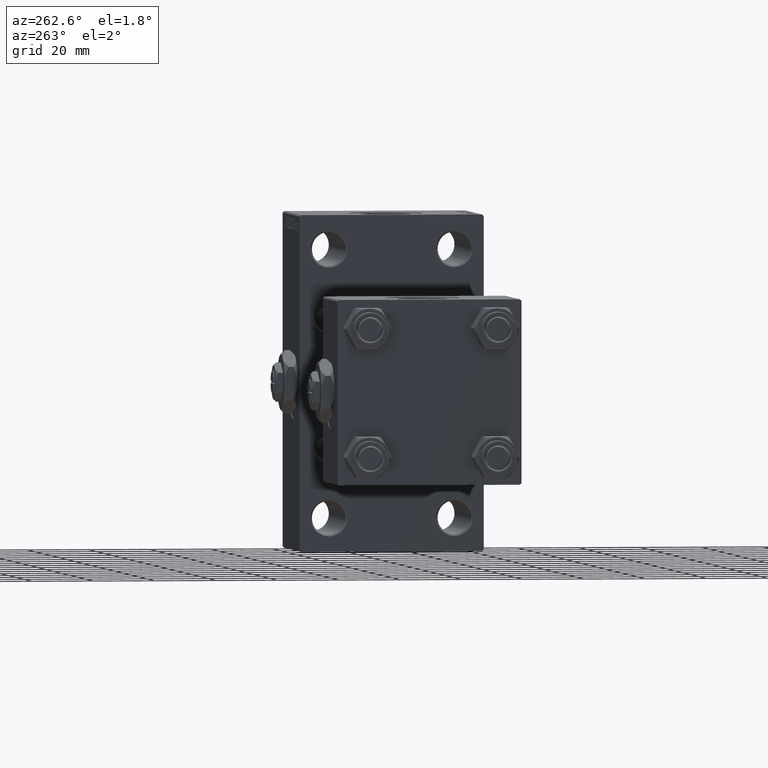
[diagram: clean part render]
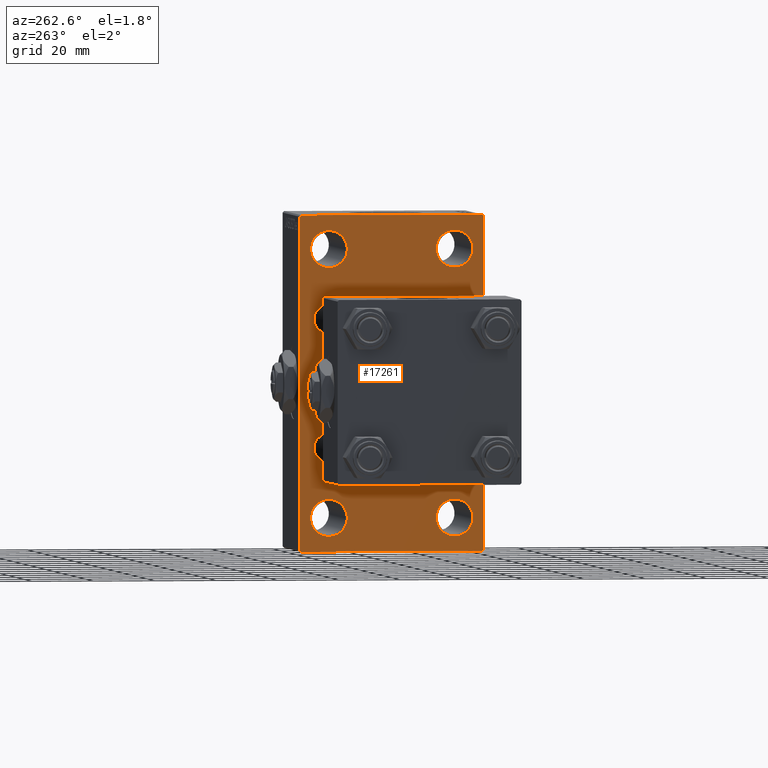
[diagram: same view with one face highlighted and labeled with its STEP entity id]
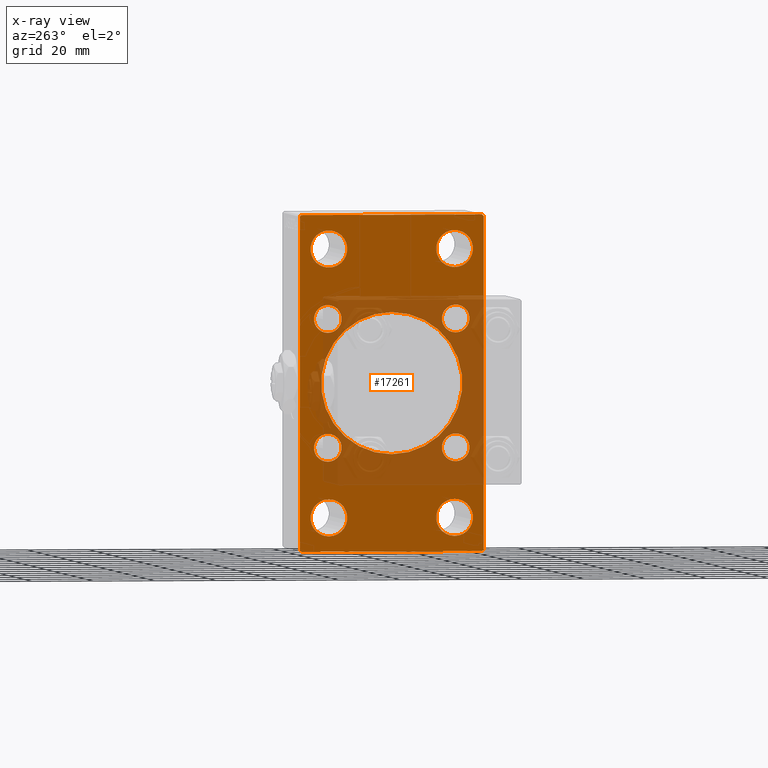
[diagram: x-ray of the same camera — body ghosted, the highlighted face saturated]
A machine part, auxiliary view. The second image highlights one B-rep face of the part: STEP entity #17261.
The next image is the same camera in x-ray: the body ghosted, the highlighted face saturated — about 34% of this face is hidden behind the body in this view.
In plain terms, the highlighted planar face has unit normal (-1, 0, 0).
Its self-contained STEP definition (entity closure, byte-faithful):
#459 = CARTESIAN_POINT ( 'NONE',  ( 95.00000000000000000, -30.00000000000000000, -53.99999999999998579 ) ) ;
#747 = CARTESIAN_POINT ( 'NONE',  ( 95.00000000000000000, 20.84999999999999787, -16.34999999999999432 ) ) ;
#1067 = DIRECTION ( 'NONE',  ( 0.000000000000000000, -1.000000000000000000, 1.156482317317871478E-16 ) ) ;
#1138 = VERTEX_POINT ( 'NONE', #33922 ) ;
#1454 = VECTOR ( 'NONE', #1067, 1000.000000000000000 ) ;
#2009 = VECTOR ( 'NONE', #40643, 1000.000000000000114 ) ;
#2307 = EDGE_CURVE ( 'NONE', #46576, #32072, #41559, .T. ) ;
#2372 = EDGE_CURVE ( 'NONE', #15923, #44837, #44819, .T. ) ;
#2415 = ORIENTED_EDGE ( 'NONE', *, *, #11664, .T. ) ;
#2613 = VECTOR ( 'NONE', #38455, 1000.000000000000114 ) ;
#3222 = EDGE_CURVE ( 'NONE', #34321, #8421, #35530, .T. ) ;
#3224 = EDGE_LOOP ( 'NONE', ( #41283, #45314 ) ) ;
#3390 = DIRECTION ( 'NONE',  ( 0.000000000000000000, 0.000000000000000000, -1.000000000000000000 ) ) ;
#3653 = DIRECTION ( 'NONE',  ( 1.000000000000000000, -0.000000000000000000, 0.000000000000000000 ) ) ;
#3727 = LINE ( 'NONE', #35439, #20182 ) ;
#4039 = LINE ( 'NONE', #19384, #18206 ) ;
#4574 = VERTEX_POINT ( 'NONE', #25096 ) ;
#4582 = ORIENTED_EDGE ( 'NONE', *, *, #32985, .T. ) ;
#4895 = CIRCLE ( 'NONE', #18527, 4.500000000000007105 ) ;
#5767 = CARTESIAN_POINT ( 'NONE',  ( 95.00000000000000000, -29.50000000000000355, -54.50000000000000000 ) ) ;
#6154 = FACE_BOUND ( 'NONE', #3224, .T. ) ;
#6473 = DIRECTION ( 'NONE',  ( 1.000000000000000000, -0.000000000000000000, 0.000000000000000000 ) ) ;
#6616 = CIRCLE ( 'NONE', #9824, 23.00000000000000000 ) ;
#6640 = FACE_BOUND ( 'NONE', #46174, .T. ) ;
#6745 = AXIS2_PLACEMENT_3D ( 'NONE', #18434, #18921, #15146 ) ;
#7003 = CARTESIAN_POINT ( 'NONE',  ( 95.00000000000000000, -30.00000000000000000, 53.99999999999997158 ) ) ;
#7100 = CIRCLE ( 'NONE', #26371, 5.999999999999894307 ) ;
#7102 = DIRECTION ( 'NONE',  ( 1.000000000000000000, -0.000000000000000000, 0.000000000000000000 ) ) ;
#7624 = ORIENTED_EDGE ( 'NONE', *, *, #21089, .T. ) ;
#7844 = DIRECTION ( 'NONE',  ( 0.000000000000000000, 0.000000000000000000, 1.000000000000000000 ) ) ;
#7972 = VERTEX_POINT ( 'NONE', #18406 ) ;
#8024 = CIRCLE ( 'NONE', #24932, 5.999999999999894307 ) ;
#8032 = CARTESIAN_POINT ( 'NONE',  ( 95.00000000000000000, 20.50000000000000000, 49.49999999999989342 ) ) ;
#8247 = EDGE_LOOP ( 'NONE', ( #27479, #4582 ) ) ;
#8265 = VERTEX_POINT ( 'NONE', #35912 ) ;
#8421 = VERTEX_POINT ( 'NONE', #27398 ) ;
#8431 = EDGE_CURVE ( 'NONE', #23360, #17825, #47442, .T. ) ;
#8524 = DIRECTION ( 'NONE',  ( 0.000000000000000000, 0.000000000000000000, 1.000000000000000000 ) ) ;
#8817 = ORIENTED_EDGE ( 'NONE', *, *, #10501, .T. ) ;
#8826 = CARTESIAN_POINT ( 'NONE',  ( 95.00000000000000000, -20.50000000000000000, -43.50000000000000000 ) ) ;
#8835 = DIRECTION ( 'NONE',  ( 0.000000000000000000, -1.000000000000000000, -1.156482317317871478E-16 ) ) ;
#8899 = DIRECTION ( 'NONE',  ( 0.000000000000000000, 0.7071067811865279218, -0.7071067811865671127 ) ) ;
#8930 = VERTEX_POINT ( 'NONE', #30308 ) ;
#9120 = AXIS2_PLACEMENT_3D ( 'NONE', #41913, #38402, #29619 ) ;
#9256 = CARTESIAN_POINT ( 'NONE',  ( 95.00000000000000000, 20.84999999999999787, 20.85000000000000142 ) ) ;
#9692 = FACE_BOUND ( 'NONE', #49519, .T. ) ;
#9824 = AXIS2_PLACEMENT_3D ( 'NONE', #28721, #48330, #21187 ) ;
#10041 = AXIS2_PLACEMENT_3D ( 'NONE', #36066, #46359, #27240 ) ;
#10098 = CIRCLE ( 'NONE', #13297, 4.500000000000007105 ) ;
#10435 = CARTESIAN_POINT ( 'NONE',  ( 95.00000000000000000, 20.84999999999999787, 25.35000000000000853 ) ) ;
#10501 = EDGE_CURVE ( 'NONE', #44837, #15923, #31409, .T. ) ;
#10602 = EDGE_CURVE ( 'NONE', #41868, #4574, #3727, .T. ) ;
#10890 = CARTESIAN_POINT ( 'NONE',  ( 95.00000000000000000, -20.50000000000000000, 43.50000000000000000 ) ) ;
#10893 = CARTESIAN_POINT ( 'NONE',  ( 95.00000000000000000, -20.84999999999999076, -20.85000000000000497 ) ) ;
#11207 = CARTESIAN_POINT ( 'NONE',  ( 95.00000000000000000, 20.50000000000000000, 43.50000000000000000 ) ) ;
#11422 = AXIS2_PLACEMENT_3D ( 'NONE', #24584, #39927, #20806 ) ;
#11664 = EDGE_CURVE ( 'NONE', #39346, #26410, #4895, .T. ) ;
#11692 = DIRECTION ( 'NONE',  ( 0.000000000000000000, 0.000000000000000000, 1.000000000000000000 ) ) ;
#12538 = EDGE_LOOP ( 'NONE', ( #13278, #35503 ) ) ;
#12605 = VERTEX_POINT ( 'NONE', #48983 ) ;
#13083 = LINE ( 'NONE', #39983, #30060 ) ;
#13278 = ORIENTED_EDGE ( 'NONE', *, *, #8431, .T. ) ;
#13297 = AXIS2_PLACEMENT_3D ( 'NONE', #22518, #30058, #11692 ) ;
#13481 = FACE_BOUND ( 'NONE', #28366, .T. ) ;
#14079 = CIRCLE ( 'NONE', #35770, 4.500000000000007105 ) ;
#15050 = VERTEX_POINT ( 'NONE', #10435 ) ;
#15146 = DIRECTION ( 'NONE',  ( 0.000000000000000000, 0.000000000000000000, 1.000000000000000000 ) ) ;
#15581 = VERTEX_POINT ( 'NONE', #459 ) ;
#15923 = VERTEX_POINT ( 'NONE', #29725 ) ;
#16057 = EDGE_CURVE ( 'NONE', #8930, #33587, #4039, .T. ) ;
#16157 = DIRECTION ( 'NONE',  ( 1.000000000000000000, -0.000000000000000000, 0.000000000000000000 ) ) ;
#16221 = CARTESIAN_POINT ( 'NONE',  ( 95.00000000000000000, -20.50000000000000000, -49.49999999999989342 ) ) ;
#16329 = DIRECTION ( 'NONE',  ( 1.000000000000000000, -0.000000000000000000, 0.000000000000000000 ) ) ;
#16807 = EDGE_CURVE ( 'NONE', #15050, #8265, #43953, .T. ) ;
#16919 = CARTESIAN_POINT ( 'NONE',  ( 95.00000000000000000, 29.99999999999999645, 54.49999999999999289 ) ) ;
#17091 = CARTESIAN_POINT ( 'NONE',  ( 95.00000000000000000, -20.50000000000000000, 49.49999999999989342 ) ) ;
#17175 = CIRCLE ( 'NONE', #9120, 4.500000000000007105 ) ;
#17261 = ADVANCED_FACE ( 'NONE', ( #48889, #21986, #6640, #40614, #13481, #6154, #17731, #33318, #9692, #25035 ), #33073, .T. ) ;
#17470 = AXIS2_PLACEMENT_3D ( 'NONE', #48404, #25765, #44632 ) ;
#17731 = FACE_BOUND ( 'NONE', #34397, .T. ) ;
#17825 = VERTEX_POINT ( 'NONE', #43454 ) ;
#17840 = DIRECTION ( 'NONE',  ( 0.000000000000000000, 0.000000000000000000, 1.000000000000000000 ) ) ;
#18191 = DIRECTION ( 'NONE',  ( 1.000000000000000000, -0.000000000000000000, 0.000000000000000000 ) ) ;
#18206 = VECTOR ( 'NONE', #8835, 1000.000000000000000 ) ;
#18323 = CARTESIAN_POINT ( 'NONE',  ( 95.00000000000000000, -20.84999999999999076, 25.35000000000001208 ) ) ;
#18406 = CARTESIAN_POINT ( 'NONE',  ( 95.00000000000000000, 20.50000000000000000, -49.49999999999989342 ) ) ;
#18434 = CARTESIAN_POINT ( 'NONE',  ( 95.00000000000000000, 20.84999999999999787, 20.85000000000000142 ) ) ;
#18527 = AXIS2_PLACEMENT_3D ( 'NONE', #27625, #16329, #8524 ) ;
#18921 = DIRECTION ( 'NONE',  ( 1.000000000000000000, -0.000000000000000000, 0.000000000000000000 ) ) ;
#19072 = DIRECTION ( 'NONE',  ( 0.000000000000000000, 0.000000000000000000, -1.000000000000000000 ) ) ;
#19235 = DIRECTION ( 'NONE',  ( 0.000000000000000000, 0.000000000000000000, 1.000000000000000000 ) ) ;
#19384 = CARTESIAN_POINT ( 'NONE',  ( 95.00000000000000000, 29.99999999999999645, -54.49999999999999289 ) ) ;
#19505 = DIRECTION ( 'NONE',  ( 0.000000000000000000, 0.000000000000000000, 1.000000000000000000 ) ) ;
#19892 = AXIS2_PLACEMENT_3D ( 'NONE', #44705, #6473, #37162 ) ;
#20182 = VECTOR ( 'NONE', #19072, 1000.000000000000000 ) ;
#20227 = EDGE_CURVE ( 'NONE', #17825, #23360, #7100, .T. ) ;
#20433 = ORIENTED_EDGE ( 'NONE', *, *, #2372, .T. ) ;
#20471 = LINE ( 'NONE', #43342, #30896 ) ;
#20806 = DIRECTION ( 'NONE',  ( 0.000000000000000000, 0.000000000000000000, 1.000000000000000000 ) ) ;
#21072 = DIRECTION ( 'NONE',  ( 0.000000000000000000, 0.000000000000000000, 1.000000000000000000 ) ) ;
#21089 = EDGE_CURVE ( 'NONE', #23192, #12605, #25633, .T. ) ;
#21150 = CIRCLE ( 'NONE', #41975, 5.999999999999894307 ) ;
#21187 = DIRECTION ( 'NONE',  ( 0.000000000000000000, 0.000000000000000000, -1.000000000000000000 ) ) ;
#21986 = FACE_BOUND ( 'NONE', #24572, .T. ) ;
#22518 = CARTESIAN_POINT ( 'NONE',  ( 95.00000000000000000, -20.84999999999999076, -20.85000000000000497 ) ) ;
#22796 = CARTESIAN_POINT ( 'NONE',  ( 95.00000000000000000, -20.84999999999999076, 16.34999999999999787 ) ) ;
#22869 = EDGE_CURVE ( 'NONE', #7972, #47274, #8024, .T. ) ;
#23192 = VERTEX_POINT ( 'NONE', #747 ) ;
#23360 = VERTEX_POINT ( 'NONE', #8032 ) ;
#23755 = CARTESIAN_POINT ( 'NONE',  ( 95.00000000000000000, -42.00000000000051159, -41.99999999999905498 ) ) ;
#24130 = LINE ( 'NONE', #30900, #2613 ) ;
#24175 = DIRECTION ( 'NONE',  ( 1.000000000000000000, -0.000000000000000000, 0.000000000000000000 ) ) ;
#24426 = DIRECTION ( 'NONE',  ( 0.000000000000000000, 0.000000000000000000, 1.000000000000000000 ) ) ;
#24442 = VERTEX_POINT ( 'NONE', #7003 ) ;
#24572 = EDGE_LOOP ( 'NONE', ( #20433, #8817 ) ) ;
#24584 = CARTESIAN_POINT ( 'NONE',  ( 95.00000000000000000, -20.84999999999999076, 20.85000000000000497 ) ) ;
#24932 = AXIS2_PLACEMENT_3D ( 'NONE', #46070, #16157, #7844 ) ;
#24977 = ORIENTED_EDGE ( 'NONE', *, *, #33596, .T. ) ;
#25035 = FACE_OUTER_BOUND ( 'NONE', #29285, .T. ) ;
#25096 = CARTESIAN_POINT ( 'NONE',  ( 95.00000000000000000, 29.99999999999999645, -53.99999999999999289 ) ) ;
#25202 = ORIENTED_EDGE ( 'NONE', *, *, #39574, .T. ) ;
#25633 = CIRCLE ( 'NONE', #32060, 4.500000000000007105 ) ;
#25765 = DIRECTION ( 'NONE',  ( -1.000000000000000000, 0.000000000000000000, -0.000000000000000000 ) ) ;
#26077 = CARTESIAN_POINT ( 'NONE',  ( 95.00000000000000000, -20.50000000000000000, -43.50000000000000000 ) ) ;
#26371 = AXIS2_PLACEMENT_3D ( 'NONE', #11207, #3653, #19235 ) ;
#26410 = VERTEX_POINT ( 'NONE', #22796 ) ;
#26724 = VERTEX_POINT ( 'NONE', #42841 ) ;
#27192 = DIRECTION ( 'NONE',  ( 0.000000000000000000, 0.000000000000000000, 1.000000000000000000 ) ) ;
#27240 = DIRECTION ( 'NONE',  ( 0.000000000000000000, 0.000000000000000000, 1.000000000000000000 ) ) ;
#27382 = AXIS2_PLACEMENT_3D ( 'NONE', #8826, #24175, #24426 ) ;
#27387 = ORIENTED_EDGE ( 'NONE', *, *, #32376, .T. ) ;
#27398 = CARTESIAN_POINT ( 'NONE',  ( 95.00000000000000000, -29.49999999999997513, 54.50000000000000000 ) ) ;
#27479 = ORIENTED_EDGE ( 'NONE', *, *, #2307, .T. ) ;
#27603 = DIRECTION ( 'NONE',  ( 0.000000000000000000, 0.000000000000000000, 1.000000000000000000 ) ) ;
#27625 = CARTESIAN_POINT ( 'NONE',  ( 95.00000000000000000, -20.84999999999999076, 20.85000000000000497 ) ) ;
#27741 = EDGE_LOOP ( 'NONE', ( #30215, #47360 ) ) ;
#27964 = AXIS2_PLACEMENT_3D ( 'NONE', #26077, #38378, #19505 ) ;
#28125 = VERTEX_POINT ( 'NONE', #34697 ) ;
#28197 = ORIENTED_EDGE ( 'NONE', *, *, #39157, .F. ) ;
#28366 = EDGE_LOOP ( 'NONE', ( #2415, #25202 ) ) ;
#28424 = ORIENTED_EDGE ( 'NONE', *, *, #36441, .T. ) ;
#28721 = CARTESIAN_POINT ( 'NONE',  ( 95.00000000000000000, -2.602085213965210642E-15, 0.000000000000000000 ) ) ;
#28828 = LINE ( 'NONE', #36393, #2009 ) ;
#29285 = EDGE_LOOP ( 'NONE', ( #31141, #31511, #28197, #28424, #36335, #35764, #31177, #27387 ) ) ;
#29619 = DIRECTION ( 'NONE',  ( 0.000000000000000000, 0.000000000000000000, 1.000000000000000000 ) ) ;
#29725 = CARTESIAN_POINT ( 'NONE',  ( 95.00000000000000000, -20.50000000000000000, -37.50000000000009948 ) ) ;
#30058 = DIRECTION ( 'NONE',  ( 1.000000000000000000, -0.000000000000000000, 0.000000000000000000 ) ) ;
#30060 = VECTOR ( 'NONE', #36706, 1000.000000000000000 ) ;
#30215 = ORIENTED_EDGE ( 'NONE', *, *, #37641, .T. ) ;
#30298 = EDGE_CURVE ( 'NONE', #1138, #28125, #39494, .T. ) ;
#30308 = CARTESIAN_POINT ( 'NONE',  ( 95.00000000000000000, 29.49999999999999645, -54.49999999999999289 ) ) ;
#30870 = CARTESIAN_POINT ( 'NONE',  ( 95.00000000000000000, 20.84999999999999787, -20.85000000000000142 ) ) ;
#30896 = VECTOR ( 'NONE', #8899, 1000.000000000000000 ) ;
#30900 = CARTESIAN_POINT ( 'NONE',  ( 95.00000000000000000, 41.99999999999998579, -41.99999999999998579 ) ) ;
#31141 = ORIENTED_EDGE ( 'NONE', *, *, #16057, .T. ) ;
#31177 = ORIENTED_EDGE ( 'NONE', *, *, #10602, .T. ) ;
#31409 = CIRCLE ( 'NONE', #27382, 5.999999999999894307 ) ;
#31511 = ORIENTED_EDGE ( 'NONE', *, *, #44803, .T. ) ;
#31803 = DIRECTION ( 'NONE',  ( 0.000000000000000000, -0.7071067811865352493, 0.7071067811865597852 ) ) ;
#32060 = AXIS2_PLACEMENT_3D ( 'NONE', #30870, #40132, #27603 ) ;
#32072 = VERTEX_POINT ( 'NONE', #42026 ) ;
#32376 = EDGE_CURVE ( 'NONE', #4574, #8930, #24130, .T. ) ;
#32639 = DIRECTION ( 'NONE',  ( 1.000000000000000000, -0.000000000000000000, 0.000000000000000000 ) ) ;
#32985 = EDGE_CURVE ( 'NONE', #32072, #46576, #21150, .T. ) ;
#33073 = PLANE ( 'NONE',  #17470 ) ;
#33318 = FACE_BOUND ( 'NONE', #27741, .T. ) ;
#33432 = CARTESIAN_POINT ( 'NONE',  ( 95.00000000000000000, 20.50000000000000000, 43.50000000000000000 ) ) ;
#33503 = AXIS2_PLACEMENT_3D ( 'NONE', #9256, #32639, #21072 ) ;
#33532 = DIRECTION ( 'NONE',  ( 0.000000000000000000, 0.000000000000000000, 1.000000000000000000 ) ) ;
#33587 = VERTEX_POINT ( 'NONE', #5767 ) ;
#33596 = EDGE_CURVE ( 'NONE', #12605, #23192, #17175, .T. ) ;
#33922 = CARTESIAN_POINT ( 'NONE',  ( 95.00000000000000000, -2.602085213965210642E-15, 23.00000000000000000 ) ) ;
#34321 = VERTEX_POINT ( 'NONE', #42954 ) ;
#34397 = EDGE_LOOP ( 'NONE', ( #7624, #24977 ) ) ;
#34697 = CARTESIAN_POINT ( 'NONE',  ( 95.00000000000000000, 2.146024240737012665E-16, -23.00000000000000000 ) ) ;
#35380 = AXIS2_PLACEMENT_3D ( 'NONE', #33432, #36476, #17840 ) ;
#35439 = CARTESIAN_POINT ( 'NONE',  ( 95.00000000000000000, 29.99999999999999645, 54.49999999999999289 ) ) ;
#35503 = ORIENTED_EDGE ( 'NONE', *, *, #20227, .T. ) ;
#35530 = LINE ( 'NONE', #16919, #1454 ) ;
#35764 = ORIENTED_EDGE ( 'NONE', *, *, #49315, .T. ) ;
#35770 = AXIS2_PLACEMENT_3D ( 'NONE', #10893, #18191, #33532 ) ;
#35912 = CARTESIAN_POINT ( 'NONE',  ( 95.00000000000000000, 20.84999999999999787, 16.34999999999999432 ) ) ;
#36066 = CARTESIAN_POINT ( 'NONE',  ( 95.00000000000000000, 20.50000000000000000, -43.50000000000000000 ) ) ;
#36335 = ORIENTED_EDGE ( 'NONE', *, *, #3222, .F. ) ;
#36386 = CARTESIAN_POINT ( 'NONE',  ( 95.00000000000000000, -20.84999999999999076, -25.35000000000001208 ) ) ;
#36393 = CARTESIAN_POINT ( 'NONE',  ( 95.00000000000000000, -42.00000000000008527, 41.99999999999979394 ) ) ;
#36441 = EDGE_CURVE ( 'NONE', #24442, #8421, #28828, .T. ) ;
#36476 = DIRECTION ( 'NONE',  ( 1.000000000000000000, -0.000000000000000000, 0.000000000000000000 ) ) ;
#36706 = DIRECTION ( 'NONE',  ( 0.000000000000000000, 0.000000000000000000, -1.000000000000000000 ) ) ;
#37085 = AXIS2_PLACEMENT_3D ( 'NONE', #37608, #41847, #3390 ) ;
#37162 = DIRECTION ( 'NONE',  ( 0.000000000000000000, 0.000000000000000000, 1.000000000000000000 ) ) ;
#37608 = CARTESIAN_POINT ( 'NONE',  ( 95.00000000000000000, -2.602085213965210642E-15, 0.000000000000000000 ) ) ;
#37641 = EDGE_CURVE ( 'NONE', #26724, #46055, #14079, .T. ) ;
#37924 = ORIENTED_EDGE ( 'NONE', *, *, #22869, .T. ) ;
#37985 = VECTOR ( 'NONE', #31803, 1000.000000000000000 ) ;
#38225 = EDGE_CURVE ( 'NONE', #46055, #26724, #10098, .T. ) ;
#38378 = DIRECTION ( 'NONE',  ( 1.000000000000000000, -0.000000000000000000, 0.000000000000000000 ) ) ;
#38402 = DIRECTION ( 'NONE',  ( 1.000000000000000000, -0.000000000000000000, 0.000000000000000000 ) ) ;
#38455 = DIRECTION ( 'NONE',  ( -0.000000000000000000, -0.7071067811865474617, -0.7071067811865474617 ) ) ;
#39157 = EDGE_CURVE ( 'NONE', #24442, #15581, #13083, .T. ) ;
#39346 = VERTEX_POINT ( 'NONE', #18323 ) ;
#39494 = CIRCLE ( 'NONE', #37085, 23.00000000000000000 ) ;
#39574 = EDGE_CURVE ( 'NONE', #26410, #39346, #44367, .T. ) ;
#39863 = EDGE_CURVE ( 'NONE', #28125, #1138, #6616, .T. ) ;
#39927 = DIRECTION ( 'NONE',  ( 1.000000000000000000, -0.000000000000000000, 0.000000000000000000 ) ) ;
#39983 = CARTESIAN_POINT ( 'NONE',  ( 95.00000000000000000, -30.00000000000000000, 54.50000000000000000 ) ) ;
#40132 = DIRECTION ( 'NONE',  ( 1.000000000000000000, -0.000000000000000000, 0.000000000000000000 ) ) ;
#40292 = ORIENTED_EDGE ( 'NONE', *, *, #30298, .T. ) ;
#40338 = ORIENTED_EDGE ( 'NONE', *, *, #39863, .T. ) ;
#40614 = FACE_BOUND ( 'NONE', #12538, .T. ) ;
#40643 = DIRECTION ( 'NONE',  ( -0.000000000000000000, 0.7071067811865451302, 0.7071067811865500152 ) ) ;
#41168 = CARTESIAN_POINT ( 'NONE',  ( 95.00000000000000000, 29.99999999999999645, 53.99999999999999289 ) ) ;
#41283 = ORIENTED_EDGE ( 'NONE', *, *, #16807, .T. ) ;
#41559 = CIRCLE ( 'NONE', #19892, 5.999999999999894307 ) ;
#41847 = DIRECTION ( 'NONE',  ( 1.000000000000000000, 0.000000000000000000, 0.000000000000000000 ) ) ;
#41868 = VERTEX_POINT ( 'NONE', #41168 ) ;
#41913 = CARTESIAN_POINT ( 'NONE',  ( 95.00000000000000000, 20.84999999999999787, -20.85000000000000142 ) ) ;
#41975 = AXIS2_PLACEMENT_3D ( 'NONE', #10890, #7102, #27192 ) ;
#42026 = CARTESIAN_POINT ( 'NONE',  ( 95.00000000000000000, -20.50000000000000000, 37.50000000000009948 ) ) ;
#42841 = CARTESIAN_POINT ( 'NONE',  ( 95.00000000000000000, -20.84999999999999076, -16.34999999999999787 ) ) ;
#42954 = CARTESIAN_POINT ( 'NONE',  ( 95.00000000000000000, 29.50000000000002132, 54.49999999999999289 ) ) ;
#43342 = CARTESIAN_POINT ( 'NONE',  ( 95.00000000000000000, 42.00000000000082423, 41.99999999999849365 ) ) ;
#43454 = CARTESIAN_POINT ( 'NONE',  ( 95.00000000000000000, 20.50000000000000000, 37.50000000000009948 ) ) ;
#43622 = LINE ( 'NONE', #23755, #37985 ) ;
#43953 = CIRCLE ( 'NONE', #33503, 4.500000000000007105 ) ;
#44367 = CIRCLE ( 'NONE', #11422, 4.500000000000007105 ) ;
#44566 = CIRCLE ( 'NONE', #10041, 5.999999999999894307 ) ;
#44632 = DIRECTION ( 'NONE',  ( -0.000000000000000000, 0.000000000000000000, 1.000000000000000000 ) ) ;
#44705 = CARTESIAN_POINT ( 'NONE',  ( 95.00000000000000000, -20.50000000000000000, 43.50000000000000000 ) ) ;
#44803 = EDGE_CURVE ( 'NONE', #33587, #15581, #43622, .T. ) ;
#44819 = CIRCLE ( 'NONE', #27964, 5.999999999999894307 ) ;
#44837 = VERTEX_POINT ( 'NONE', #16221 ) ;
#45043 = ORIENTED_EDGE ( 'NONE', *, *, #49335, .T. ) ;
#45269 = CIRCLE ( 'NONE', #6745, 4.500000000000007105 ) ;
#45314 = ORIENTED_EDGE ( 'NONE', *, *, #47333, .T. ) ;
#45333 = CARTESIAN_POINT ( 'NONE',  ( 95.00000000000000000, 20.50000000000000000, -37.50000000000009948 ) ) ;
#46055 = VERTEX_POINT ( 'NONE', #36386 ) ;
#46070 = CARTESIAN_POINT ( 'NONE',  ( 95.00000000000000000, 20.50000000000000000, -43.50000000000000000 ) ) ;
#46174 = EDGE_LOOP ( 'NONE', ( #45043, #37924 ) ) ;
#46359 = DIRECTION ( 'NONE',  ( 1.000000000000000000, -0.000000000000000000, 0.000000000000000000 ) ) ;
#46576 = VERTEX_POINT ( 'NONE', #17091 ) ;
#47274 = VERTEX_POINT ( 'NONE', #45333 ) ;
#47333 = EDGE_CURVE ( 'NONE', #8265, #15050, #45269, .T. ) ;
#47360 = ORIENTED_EDGE ( 'NONE', *, *, #38225, .T. ) ;
#47442 = CIRCLE ( 'NONE', #35380, 5.999999999999894307 ) ;
#48330 = DIRECTION ( 'NONE',  ( 1.000000000000000000, 0.000000000000000000, 0.000000000000000000 ) ) ;
#48404 = CARTESIAN_POINT ( 'NONE',  ( 95.00000000000000000, 0.000000000000000000, 0.000000000000000000 ) ) ;
#48889 = FACE_BOUND ( 'NONE', #8247, .T. ) ;
#48983 = CARTESIAN_POINT ( 'NONE',  ( 95.00000000000000000, 20.84999999999999787, -25.35000000000000853 ) ) ;
#49315 = EDGE_CURVE ( 'NONE', #34321, #41868, #20471, .T. ) ;
#49335 = EDGE_CURVE ( 'NONE', #47274, #7972, #44566, .T. ) ;
#49519 = EDGE_LOOP ( 'NONE', ( #40292, #40338 ) ) ;